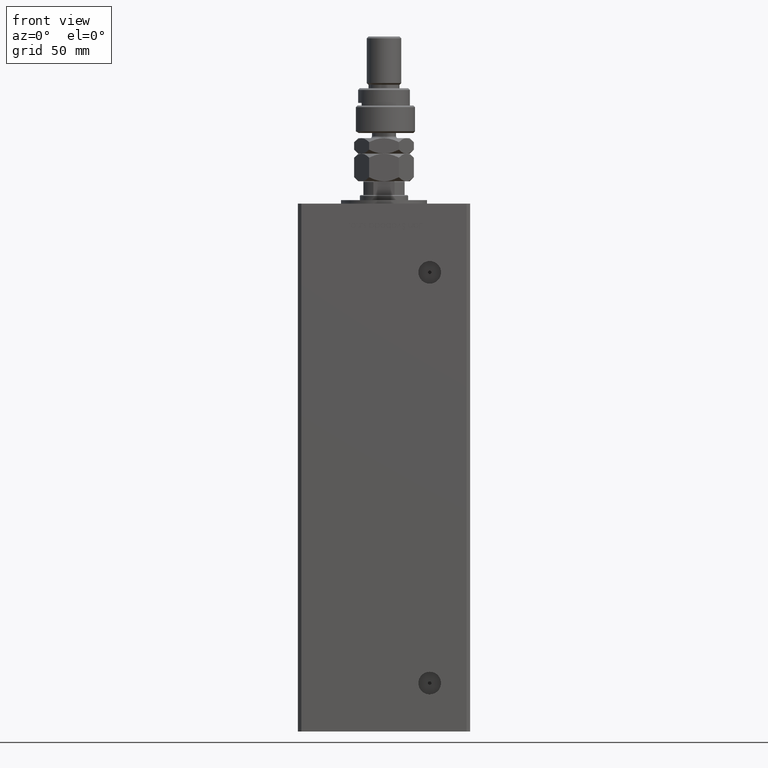
[diagram: clean part render]
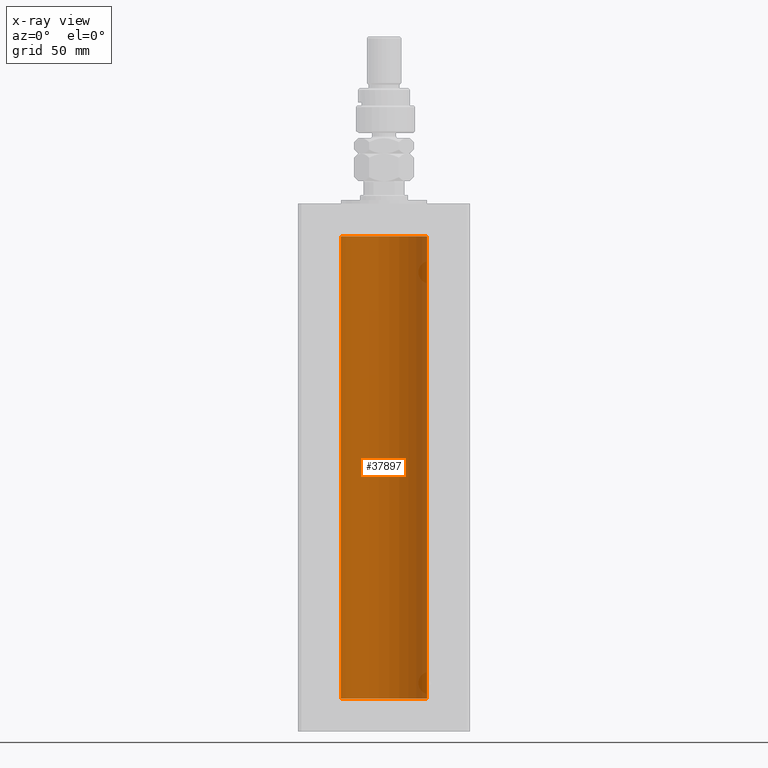
[diagram: x-ray — body ghosted, one internal face saturated and labeled with its STEP entity id]
A machine part, front view, then the same camera in x-ray: the body is ghosted and one INTERNAL B-rep face — a face not visible from any outside direction — is saturated and labeled: STEP entity #37897.
In plain terms, the highlighted cylindrical surface (partial cylindrical patch) has radius 25 mm, axis along (-0, -0, -1).
Its self-contained STEP definition (entity closure, byte-faithful):
#652 = DIRECTION ( 'NONE',  ( -0.000000000000000000, -0.000000000000000000, -1.000000000000000000 ) ) ;
#2708 = ORIENTED_EDGE ( 'NONE', *, *, #33209, .F. ) ;
#3143 = CARTESIAN_POINT ( 'NONE',  ( -25.00000000000000000, 0.000000000000000000, 268.5000000000000000 ) ) ;
#4648 = VERTEX_POINT ( 'NONE', #12940 ) ;
#5321 = VERTEX_POINT ( 'NONE', #31640 ) ;
#5844 = EDGE_CURVE ( 'NONE', #5321, #18288, #32949, .T. ) ;
#8767 = DIRECTION ( 'NONE',  ( 1.000000000000000000, 0.000000000000000000, 0.000000000000000000 ) ) ;
#9543 = VERTEX_POINT ( 'NONE', #3143 ) ;
#9618 = EDGE_CURVE ( 'NONE', #9543, #4648, #15563, .T. ) ;
#10088 = CARTESIAN_POINT ( 'NONE',  ( 25.00000000000000000, 3.061616997868383043E-15, 0.000000000000000000 ) ) ;
#11874 = ORIENTED_EDGE ( 'NONE', *, *, #5844, .F. ) ;
#12267 = ORIENTED_EDGE ( 'NONE', *, *, #36368, .T. ) ;
#12940 = CARTESIAN_POINT ( 'NONE',  ( -25.00000000000000000, 0.000000000000000000, 0.000000000000000000 ) ) ;
#15318 = DIRECTION ( 'NONE',  ( -0.000000000000000000, 0.000000000000000000, 1.000000000000000000 ) ) ;
#15563 = LINE ( 'NONE', #54199, #35498 ) ;
#18288 = VERTEX_POINT ( 'NONE', #10088 ) ;
#19636 = AXIS2_PLACEMENT_3D ( 'NONE', #24680, #33853, #8767 ) ;
#24680 = CARTESIAN_POINT ( 'NONE',  ( 0.000000000000000000, 0.000000000000000000, 268.5000000000000000 ) ) ;
#27090 = CYLINDRICAL_SURFACE ( 'NONE', #35678, 25.00000000000000000 ) ;
#30935 = VECTOR ( 'NONE', #49597, 1000.000000000000000 ) ;
#31121 = AXIS2_PLACEMENT_3D ( 'NONE', #32571, #15318, #36201 ) ;
#31640 = CARTESIAN_POINT ( 'NONE',  ( 25.00000000000000000, 3.061616997868383043E-15, 268.5000000000000000 ) ) ;
#32105 = CIRCLE ( 'NONE', #19636, 25.00000000000000000 ) ;
#32571 = CARTESIAN_POINT ( 'NONE',  ( 0.000000000000000000, 0.000000000000000000, 0.000000000000000000 ) ) ;
#32668 = CARTESIAN_POINT ( 'NONE',  ( 25.00000000000000000, 3.061616997868383043E-15, 268.5000000000000000 ) ) ;
#32949 = LINE ( 'NONE', #32668, #30935 ) ;
#33209 = EDGE_CURVE ( 'NONE', #18288, #4648, #48865, .T. ) ;
#33853 = DIRECTION ( 'NONE',  ( -0.000000000000000000, 0.000000000000000000, 1.000000000000000000 ) ) ;
#34906 = FACE_OUTER_BOUND ( 'NONE', #42611, .T. ) ;
#35498 = VECTOR ( 'NONE', #36175, 1000.000000000000000 ) ;
#35678 = AXIS2_PLACEMENT_3D ( 'NONE', #43485, #652, #52125 ) ;
#36175 = DIRECTION ( 'NONE',  ( -0.000000000000000000, -0.000000000000000000, -1.000000000000000000 ) ) ;
#36201 = DIRECTION ( 'NONE',  ( 1.000000000000000000, 0.000000000000000000, 0.000000000000000000 ) ) ;
#36368 = EDGE_CURVE ( 'NONE', #5321, #9543, #32105, .T. ) ;
#37897 = ADVANCED_FACE ( 'NONE', ( #34906 ), #27090, .F. ) ;
#42611 = EDGE_LOOP ( 'NONE', ( #11874, #12267, #53530, #2708 ) ) ;
#43485 = CARTESIAN_POINT ( 'NONE',  ( 0.000000000000000000, 0.000000000000000000, 268.5000000000000000 ) ) ;
#48865 = CIRCLE ( 'NONE', #31121, 25.00000000000000000 ) ;
#49597 = DIRECTION ( 'NONE',  ( -0.000000000000000000, -0.000000000000000000, -1.000000000000000000 ) ) ;
#52125 = DIRECTION ( 'NONE',  ( -1.000000000000000000, 0.000000000000000000, 0.000000000000000000 ) ) ;
#53530 = ORIENTED_EDGE ( 'NONE', *, *, #9618, .T. ) ;
#54199 = CARTESIAN_POINT ( 'NONE',  ( -25.00000000000000000, 0.000000000000000000, 268.5000000000000000 ) ) ;